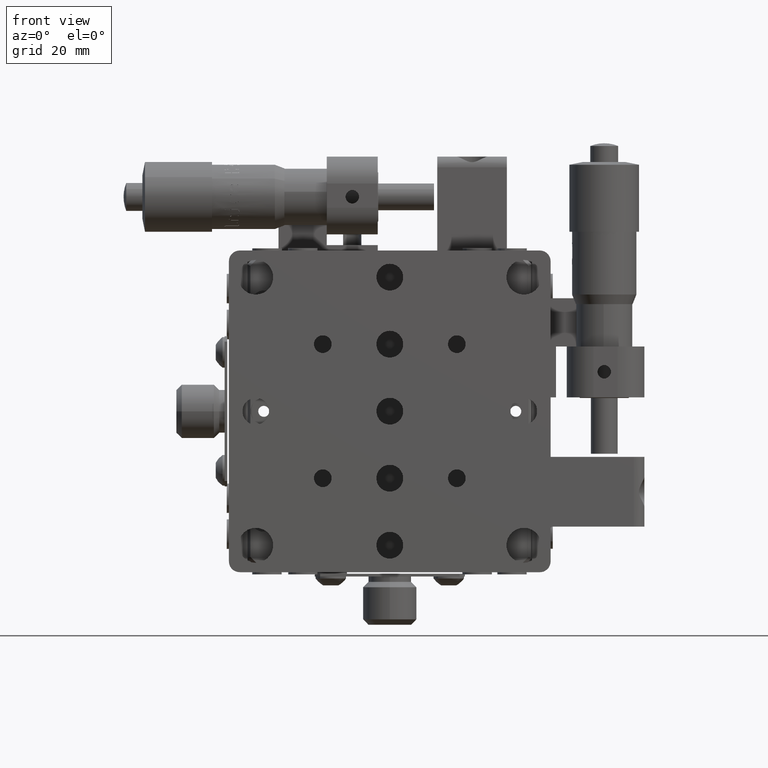
[diagram: clean part render]
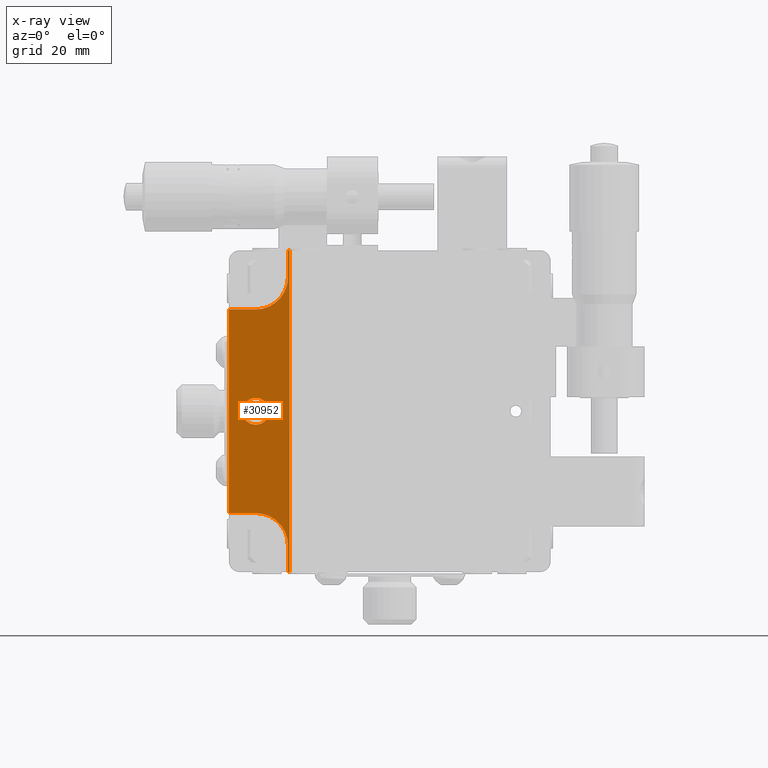
[diagram: x-ray — body ghosted, one internal face saturated and labeled with its STEP entity id]
A machine part, front view, then the same camera in x-ray: the body is ghosted and one INTERNAL B-rep face — a face not visible from any outside direction — is saturated and labeled: STEP entity #30952.
In plain terms, the highlighted planar face has unit normal (0, -1, 0).
Its self-contained STEP definition (entity closure, byte-faithful):
#445 = EDGE_CURVE ( 'NONE', #14002, #60793, #10844, .T. ) ;
#1233 = AXIS2_PLACEMENT_3D ( 'NONE', #3833, #42940, #9446 ) ;
#1302 = CARTESIAN_POINT ( 'NONE',  ( -18.99999999999998900, 7.000000000000000000, -30.00000000000000000 ) ) ;
#1828 = DIRECTION ( 'NONE',  ( -0.0000000000000000000, -0.0000000000000000000, -1.000000000000000000 ) ) ;
#1833 = VECTOR ( 'NONE', #2755, 1000.000000000000000 ) ;
#2755 = DIRECTION ( 'NONE',  ( 0.0000000000000000000, 0.0000000000000000000, -1.000000000000000000 ) ) ;
#3007 = AXIS2_PLACEMENT_3D ( 'NONE', #56466, #22983, #62109 ) ;
#3015 = EDGE_CURVE ( 'NONE', #57342, #14002, #41889, .T. ) ;
#3833 = CARTESIAN_POINT ( 'NONE',  ( -25.00000000000000000, 7.000000000000000000, 0.0000000000000000000 ) ) ;
#6585 = CARTESIAN_POINT ( 'NONE',  ( -30.00000000000000000, 7.000000000000000000, 30.00000000000000000 ) ) ;
#6703 = CARTESIAN_POINT ( 'NONE',  ( -25.00000000000000400, 7.000000000000000000, -19.00000000000000400 ) ) ;
#7320 = LINE ( 'NONE', #6703, #35364 ) ;
#7755 = FACE_OUTER_BOUND ( 'NONE', #39195, .T. ) ;
#9446 = DIRECTION ( 'NONE',  ( 0.0000000000000000000, 0.0000000000000000000, -1.000000000000000000 ) ) ;
#10844 = LINE ( 'NONE', #55753, #38865 ) ;
#11825 = ORIENTED_EDGE ( 'NONE', *, *, #72060, .F. ) ;
#12331 = AXIS2_PLACEMENT_3D ( 'NONE', #62874, #29344, #68496 ) ;
#14002 = VERTEX_POINT ( 'NONE', #56602 ) ;
#17022 = VECTOR ( 'NONE', #40574, 1000.000000000000000 ) ;
#17084 = ORIENTED_EDGE ( 'NONE', *, *, #48114, .F. ) ;
#18962 = CARTESIAN_POINT ( 'NONE',  ( -25.00000000000000400, 7.000000000000000000, -19.00000000000000400 ) ) ;
#19241 = VECTOR ( 'NONE', #51203, 1000.000000000000000 ) ;
#19349 = CARTESIAN_POINT ( 'NONE',  ( -30.00000000000000000, 7.000000000000000000, 30.00000000000000000 ) ) ;
#19579 = ORIENTED_EDGE ( 'NONE', *, *, #67775, .T. ) ;
#20718 = CARTESIAN_POINT ( 'NONE',  ( -30.00000000000000000, 7.000000000000000000, 30.00000000000000000 ) ) ;
#21893 = CARTESIAN_POINT ( 'NONE',  ( -18.99999999999998900, 7.000000000000000000, -25.00000000000000000 ) ) ;
#22983 = DIRECTION ( 'NONE',  ( 0.0000000000000000000, 1.000000000000000000, 0.0000000000000000000 ) ) ;
#24036 = EDGE_CURVE ( 'NONE', #56418, #72353, #46462, .T. ) ;
#24385 = VERTEX_POINT ( 'NONE', #1302 ) ;
#24551 = EDGE_CURVE ( 'NONE', #67157, #24385, #46470, .T. ) ;
#25109 = ORIENTED_EDGE ( 'NONE', *, *, #445, .F. ) ;
#26353 = DIRECTION ( 'NONE',  ( 0.0000000000000000000, -0.0000000000000000000, -1.000000000000000000 ) ) ;
#26524 = LINE ( 'NONE', #19349, #56257 ) ;
#29344 = DIRECTION ( 'NONE',  ( 0.0000000000000000000, -1.000000000000000000, 0.0000000000000000000 ) ) ;
#30741 = CARTESIAN_POINT ( 'NONE',  ( -25.00000000000000400, 7.000000000000000000, -24.99999999999999600 ) ) ;
#30952 = ADVANCED_FACE ( 'NONE', ( #60249, #7755 ), #70588, .F. ) ;
#31356 = CARTESIAN_POINT ( 'NONE',  ( -18.69999999999999900, 7.000000000000000000, -30.00000000000000000 ) ) ;
#33350 = CARTESIAN_POINT ( 'NONE',  ( -30.00000000000000000, 7.000000000000000000, 19.00000000000001400 ) ) ;
#33661 = LINE ( 'NONE', #57178, #17022 ) ;
#35364 = VECTOR ( 'NONE', #62438, 1000.000000000000000 ) ;
#36408 = DIRECTION ( 'NONE',  ( 0.0000000000000000000, 0.0000000000000000000, 1.000000000000000000 ) ) ;
#37458 = ORIENTED_EDGE ( 'NONE', *, *, #48759, .T. ) ;
#37699 = ORIENTED_EDGE ( 'NONE', *, *, #3015, .F. ) ;
#38401 = ORIENTED_EDGE ( 'NONE', *, *, #24036, .T. ) ;
#38832 = ORIENTED_EDGE ( 'NONE', *, *, #59720, .F. ) ;
#38865 = VECTOR ( 'NONE', #1828, 1000.000000000000000 ) ;
#39159 = CARTESIAN_POINT ( 'NONE',  ( -30.00000000000000000, 7.000000000000000000, -19.00000000000000000 ) ) ;
#39195 = EDGE_LOOP ( 'NONE', ( #44654, #17084, #46168, #25109, #37699, #37458, #61585, #66732, #11825, #38832 ) ) ;
#40076 = DIRECTION ( 'NONE',  ( -1.000000000000000000, -0.0000000000000000000, -0.0000000000000000000 ) ) ;
#40551 = EDGE_CURVE ( 'NONE', #49583, #69948, #26524, .T. ) ;
#40574 = DIRECTION ( 'NONE',  ( -0.0000000000000000000, -0.0000000000000000000, -1.000000000000000000 ) ) ;
#40861 = CIRCLE ( 'NONE', #12331, 2.499999999999992000 ) ;
#41889 = LINE ( 'NONE', #6585, #66378 ) ;
#42940 = DIRECTION ( 'NONE',  ( 0.0000000000000000000, -1.000000000000000000, 0.0000000000000000000 ) ) ;
#43201 = VERTEX_POINT ( 'NONE', #18962 ) ;
#44522 = CARTESIAN_POINT ( 'NONE',  ( -24.99999999999999600, 7.000000000000000000, 19.00000000000001800 ) ) ;
#44654 = ORIENTED_EDGE ( 'NONE', *, *, #40551, .F. ) ;
#45583 = CARTESIAN_POINT ( 'NONE',  ( -30.00000000000000000, 7.000000000000000000, -30.00000000000000000 ) ) ;
#45698 = EDGE_LOOP ( 'NONE', ( #38401, #19579 ) ) ;
#46168 = ORIENTED_EDGE ( 'NONE', *, *, #68397, .F. ) ;
#46462 = CIRCLE ( 'NONE', #1233, 2.499999999999992000 ) ;
#46470 = LINE ( 'NONE', #69752, #1833 ) ;
#47675 = CIRCLE ( 'NONE', #3007, 6.000000000000008900 ) ;
#48114 = EDGE_CURVE ( 'NONE', #55209, #49583, #67087, .T. ) ;
#48759 = EDGE_CURVE ( 'NONE', #57342, #68146, #33661, .T. ) ;
#48982 = LINE ( 'NONE', #45583, #19241 ) ;
#49437 = AXIS2_PLACEMENT_3D ( 'NONE', #20718, #59869, #26353 ) ;
#49583 = VERTEX_POINT ( 'NONE', #33350 ) ;
#51203 = DIRECTION ( 'NONE',  ( -1.000000000000000000, -0.0000000000000000000, -0.0000000000000000000 ) ) ;
#52201 = VECTOR ( 'NONE', #66577, 1000.000000000000000 ) ;
#53867 = CIRCLE ( 'NONE', #58042, 6.000000000000005300 ) ;
#55209 = VERTEX_POINT ( 'NONE', #44522 ) ;
#55753 = CARTESIAN_POINT ( 'NONE',  ( -18.99999999999997500, 7.000000000000000000, 25.00000000000000700 ) ) ;
#56257 = VECTOR ( 'NONE', #58433, 1000.000000000000000 ) ;
#56418 = VERTEX_POINT ( 'NONE', #60914 ) ;
#56466 = CARTESIAN_POINT ( 'NONE',  ( -25.00000000000000000, 7.000000000000000000, 25.00000000000000400 ) ) ;
#56602 = CARTESIAN_POINT ( 'NONE',  ( -18.99999999999997500, 7.000000000000000000, 30.00000000000000000 ) ) ;
#57178 = CARTESIAN_POINT ( 'NONE',  ( -18.69999999999999900, 7.000000000000000000, 30.00000000000000000 ) ) ;
#57342 = VERTEX_POINT ( 'NONE', #61237 ) ;
#57463 = EDGE_CURVE ( 'NONE', #68146, #24385, #48982, .T. ) ;
#58042 = AXIS2_PLACEMENT_3D ( 'NONE', #30741, #69852, #36408 ) ;
#58433 = DIRECTION ( 'NONE',  ( -0.0000000000000000000, -0.0000000000000000000, -1.000000000000000000 ) ) ;
#59720 = EDGE_CURVE ( 'NONE', #69948, #43201, #7320, .T. ) ;
#59869 = DIRECTION ( 'NONE',  ( 0.0000000000000000000, -1.000000000000000000, 0.0000000000000000000 ) ) ;
#60249 = FACE_BOUND ( 'NONE', #45698, .T. ) ;
#60793 = VERTEX_POINT ( 'NONE', #68370 ) ;
#60914 = CARTESIAN_POINT ( 'NONE',  ( -25.00000000000000000, 7.000000000000000000, -2.499999999999992000 ) ) ;
#60943 = CARTESIAN_POINT ( 'NONE',  ( -24.99999999999999600, 7.000000000000000000, 19.00000000000001800 ) ) ;
#61237 = CARTESIAN_POINT ( 'NONE',  ( -18.69999999999999900, 7.000000000000000000, 30.00000000000000000 ) ) ;
#61585 = ORIENTED_EDGE ( 'NONE', *, *, #57463, .T. ) ;
#62109 = DIRECTION ( 'NONE',  ( 0.0000000000000000000, 0.0000000000000000000, 1.000000000000000000 ) ) ;
#62240 = CARTESIAN_POINT ( 'NONE',  ( -25.00000000000000000, 7.000000000000000000, 2.499999999999992000 ) ) ;
#62438 = DIRECTION ( 'NONE',  ( 1.000000000000000000, -0.0000000000000000000, -5.782411586589372400E-016 ) ) ;
#62874 = CARTESIAN_POINT ( 'NONE',  ( -25.00000000000000000, 7.000000000000000000, 0.0000000000000000000 ) ) ;
#66378 = VECTOR ( 'NONE', #40076, 1000.000000000000000 ) ;
#66577 = DIRECTION ( 'NONE',  ( -1.000000000000000000, 0.0000000000000000000, -5.782411586589372400E-016 ) ) ;
#66732 = ORIENTED_EDGE ( 'NONE', *, *, #24551, .F. ) ;
#67087 = LINE ( 'NONE', #60943, #52201 ) ;
#67157 = VERTEX_POINT ( 'NONE', #21893 ) ;
#67775 = EDGE_CURVE ( 'NONE', #72353, #56418, #40861, .T. ) ;
#68146 = VERTEX_POINT ( 'NONE', #31356 ) ;
#68370 = CARTESIAN_POINT ( 'NONE',  ( -18.99999999999999600, 7.000000000000000000, 25.00000000000000700 ) ) ;
#68397 = EDGE_CURVE ( 'NONE', #60793, #55209, #47675, .T. ) ;
#68496 = DIRECTION ( 'NONE',  ( 0.0000000000000000000, 0.0000000000000000000, -1.000000000000000000 ) ) ;
#69752 = CARTESIAN_POINT ( 'NONE',  ( -18.99999999999998900, 7.000000000000000000, -25.00000000000000000 ) ) ;
#69852 = DIRECTION ( 'NONE',  ( 0.0000000000000000000, 1.000000000000000000, 0.0000000000000000000 ) ) ;
#69948 = VERTEX_POINT ( 'NONE', #39159 ) ;
#70588 = PLANE ( 'NONE',  #49437 ) ;
#72060 = EDGE_CURVE ( 'NONE', #43201, #67157, #53867, .T. ) ;
#72353 = VERTEX_POINT ( 'NONE', #62240 ) ;